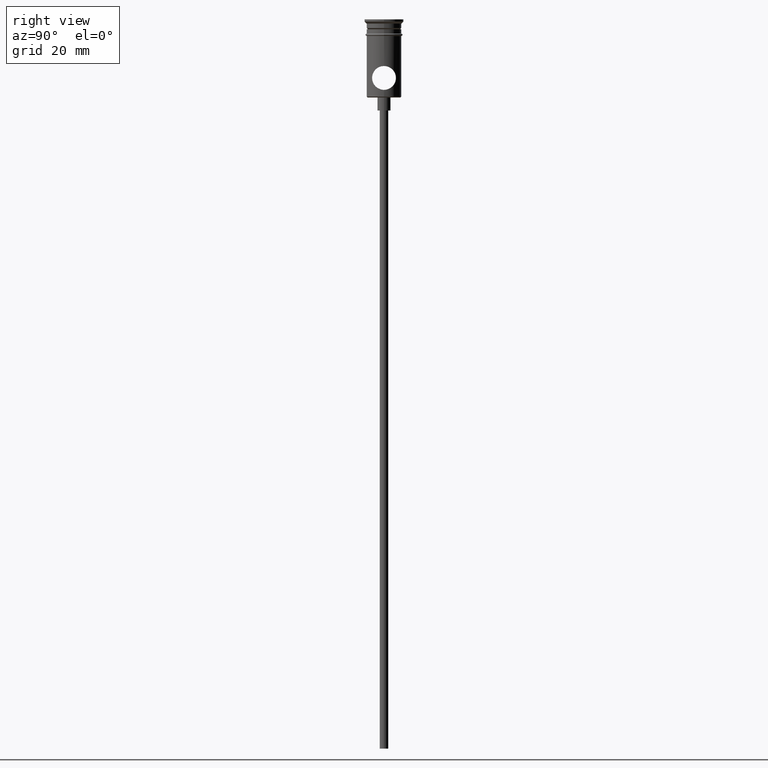
[diagram: clean part render]
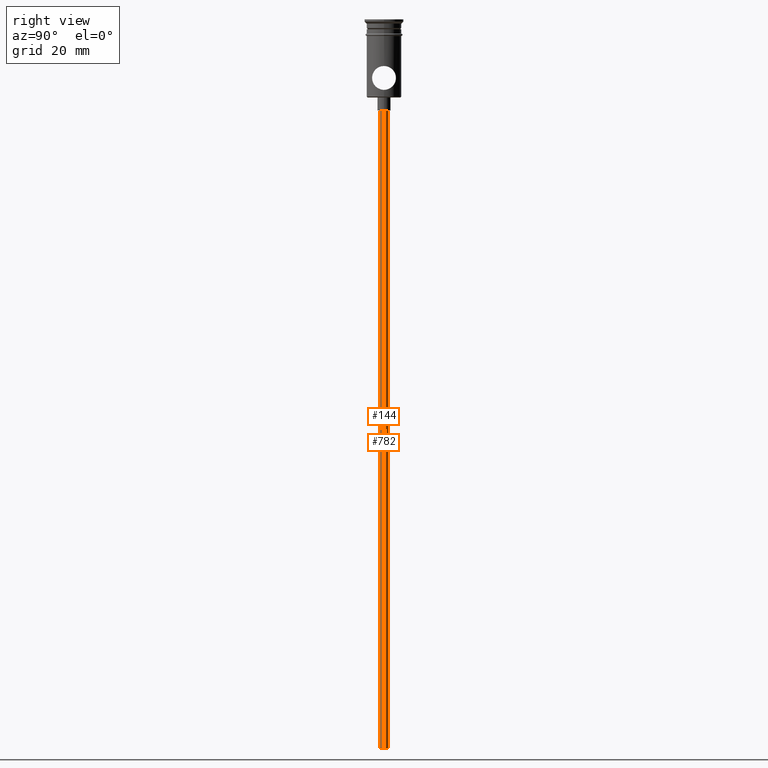
[diagram: same view with one multi-face feature highlighted, each face labeled with its STEP entity id]
A machine part, right view. The highlighted faces form ONE feature: a constant-radius fillet chain: 2 tangent blend faces with common blend radius 1 mm. The faces share edges in the B-rep.
Their STEP definitions:
[1] entity #782 (Cylinder):
#62 = DIRECTION ( 'NONE',  ( -1.000000000000000000, 0.000000000000000000, 0.000000000000000000 ) ) ;
#123 = VECTOR ( 'NONE', #154, 1000.000000000000000 ) ;
#154 = DIRECTION ( 'NONE',  ( -0.000000000000000000, -0.000000000000000000, 1.000000000000000000 ) ) ;
#240 = DIRECTION ( 'NONE',  ( -0.000000000000000000, -0.000000000000000000, 1.000000000000000000 ) ) ;
#251 = EDGE_CURVE ( 'NONE', #1079, #976, #1351, .T. ) ;
#286 = ORIENTED_EDGE ( 'NONE', *, *, #251, .F. ) ;
#291 = AXIS2_PLACEMENT_3D ( 'NONE', #1288, #393, #609 ) ;
#333 = CIRCLE ( 'NONE', #1021, 0.9999999999999997780 ) ;
#392 = CARTESIAN_POINT ( 'NONE',  ( 0.9999999999999997780, 0.000000000000000000, -167.9999999999999716 ) ) ;
#393 = DIRECTION ( 'NONE',  ( -0.000000000000000000, -0.000000000000000000, 1.000000000000000000 ) ) ;
#501 = VERTEX_POINT ( 'NONE', #1142 ) ;
#542 = EDGE_CURVE ( 'NONE', #947, #976, #1191, .T. ) ;
#566 = ORIENTED_EDGE ( 'NONE', *, *, #814, .F. ) ;
#584 = CYLINDRICAL_SURFACE ( 'NONE', #291, 0.9999999999999997780 ) ;
#609 = DIRECTION ( 'NONE',  ( 1.000000000000000000, 0.000000000000000000, 0.000000000000000000 ) ) ;
#610 = DIRECTION ( 'NONE',  ( -1.000000000000000000, 0.000000000000000000, 0.000000000000000000 ) ) ;
#618 = ORIENTED_EDGE ( 'NONE', *, *, #1347, .T. ) ;
#705 = CARTESIAN_POINT ( 'NONE',  ( 0.000000000000000000, 0.000000000000000000, -20.99999999999999645 ) ) ;
#782 = ADVANCED_FACE ( 'NONE', ( #1159 ), #584, .T. ) ;
#814 = EDGE_CURVE ( 'NONE', #501, #1079, #333, .T. ) ;
#868 = ORIENTED_EDGE ( 'NONE', *, *, #542, .T. ) ;
#947 = VERTEX_POINT ( 'NONE', #1128 ) ;
#976 = VERTEX_POINT ( 'NONE', #1355 ) ;
#1021 = AXIS2_PLACEMENT_3D ( 'NONE', #1034, #1279, #62 ) ;
#1034 = CARTESIAN_POINT ( 'NONE',  ( 0.000000000000000000, 0.000000000000000000, -167.9999999999999716 ) ) ;
#1079 = VERTEX_POINT ( 'NONE', #392 ) ;
#1113 = CARTESIAN_POINT ( 'NONE',  ( -0.9999999999999997780, 1.224646799147352961E-16, -167.9999999999999716 ) ) ;
#1128 = CARTESIAN_POINT ( 'NONE',  ( -0.9999999999999997780, 1.224646799147352961E-16, -20.99999999999999645 ) ) ;
#1142 = CARTESIAN_POINT ( 'NONE',  ( -0.9999999999999997780, 1.224646799147352961E-16, -167.9999999999999716 ) ) ;
#1159 = FACE_OUTER_BOUND ( 'NONE', #1306, .T. ) ;
#1165 = DIRECTION ( 'NONE',  ( 0.000000000000000000, 0.000000000000000000, -1.000000000000000000 ) ) ;
#1191 = CIRCLE ( 'NONE', #1383, 0.9999999999999997780 ) ;
#1245 = LINE ( 'NONE', #1113, #123 ) ;
#1279 = DIRECTION ( 'NONE',  ( 0.000000000000000000, 0.000000000000000000, -1.000000000000000000 ) ) ;
#1288 = CARTESIAN_POINT ( 'NONE',  ( 0.000000000000000000, 0.000000000000000000, -167.9999999999999716 ) ) ;
#1292 = VECTOR ( 'NONE', #240, 1000.000000000000000 ) ;
#1306 = EDGE_LOOP ( 'NONE', ( #566, #618, #868, #286 ) ) ;
#1347 = EDGE_CURVE ( 'NONE', #501, #947, #1245, .T. ) ;
#1351 = LINE ( 'NONE', #1366, #1292 ) ;
#1355 = CARTESIAN_POINT ( 'NONE',  ( 0.9999999999999997780, 0.000000000000000000, -20.99999999999999645 ) ) ;
#1366 = CARTESIAN_POINT ( 'NONE',  ( 0.9999999999999997780, 0.000000000000000000, -167.9999999999999716 ) ) ;
#1383 = AXIS2_PLACEMENT_3D ( 'NONE', #705, #1165, #610 ) ;
[2] entity #144 (Cylinder):
#11 = DIRECTION ( 'NONE',  ( 1.000000000000000000, 0.000000000000000000, 0.000000000000000000 ) ) ;
#77 = CARTESIAN_POINT ( 'NONE',  ( 0.000000000000000000, 0.000000000000000000, -20.99999999999999645 ) ) ;
#123 = VECTOR ( 'NONE', #154, 1000.000000000000000 ) ;
#144 = ADVANCED_FACE ( 'NONE', ( #517 ), #983, .T. ) ;
#154 = DIRECTION ( 'NONE',  ( -0.000000000000000000, -0.000000000000000000, 1.000000000000000000 ) ) ;
#156 = DIRECTION ( 'NONE',  ( 0.000000000000000000, 0.000000000000000000, -1.000000000000000000 ) ) ;
#170 = DIRECTION ( 'NONE',  ( 0.000000000000000000, 0.000000000000000000, -1.000000000000000000 ) ) ;
#186 = EDGE_CURVE ( 'NONE', #1079, #501, #556, .T. ) ;
#240 = DIRECTION ( 'NONE',  ( -0.000000000000000000, -0.000000000000000000, 1.000000000000000000 ) ) ;
#249 = ORIENTED_EDGE ( 'NONE', *, *, #186, .F. ) ;
#251 = EDGE_CURVE ( 'NONE', #1079, #976, #1351, .T. ) ;
#329 = CARTESIAN_POINT ( 'NONE',  ( 0.000000000000000000, 0.000000000000000000, -167.9999999999999716 ) ) ;
#348 = DIRECTION ( 'NONE',  ( -1.000000000000000000, 0.000000000000000000, 0.000000000000000000 ) ) ;
#351 = AXIS2_PLACEMENT_3D ( 'NONE', #1247, #156, #348 ) ;
#392 = CARTESIAN_POINT ( 'NONE',  ( 0.9999999999999997780, 0.000000000000000000, -167.9999999999999716 ) ) ;
#426 = DIRECTION ( 'NONE',  ( -0.000000000000000000, -0.000000000000000000, 1.000000000000000000 ) ) ;
#465 = AXIS2_PLACEMENT_3D ( 'NONE', #77, #170, #583 ) ;
#501 = VERTEX_POINT ( 'NONE', #1142 ) ;
#517 = FACE_OUTER_BOUND ( 'NONE', #1109, .T. ) ;
#535 = AXIS2_PLACEMENT_3D ( 'NONE', #329, #426, #11 ) ;
#556 = CIRCLE ( 'NONE', #351, 0.9999999999999997780 ) ;
#569 = ORIENTED_EDGE ( 'NONE', *, *, #1347, .F. ) ;
#583 = DIRECTION ( 'NONE',  ( -1.000000000000000000, 0.000000000000000000, 0.000000000000000000 ) ) ;
#718 = CIRCLE ( 'NONE', #465, 0.9999999999999997780 ) ;
#947 = VERTEX_POINT ( 'NONE', #1128 ) ;
#976 = VERTEX_POINT ( 'NONE', #1355 ) ;
#983 = CYLINDRICAL_SURFACE ( 'NONE', #535, 0.9999999999999997780 ) ;
#1079 = VERTEX_POINT ( 'NONE', #392 ) ;
#1109 = EDGE_LOOP ( 'NONE', ( #569, #249, #1308, #1320 ) ) ;
#1113 = CARTESIAN_POINT ( 'NONE',  ( -0.9999999999999997780, 1.224646799147352961E-16, -167.9999999999999716 ) ) ;
#1128 = CARTESIAN_POINT ( 'NONE',  ( -0.9999999999999997780, 1.224646799147352961E-16, -20.99999999999999645 ) ) ;
#1142 = CARTESIAN_POINT ( 'NONE',  ( -0.9999999999999997780, 1.224646799147352961E-16, -167.9999999999999716 ) ) ;
#1182 = EDGE_CURVE ( 'NONE', #976, #947, #718, .T. ) ;
#1245 = LINE ( 'NONE', #1113, #123 ) ;
#1247 = CARTESIAN_POINT ( 'NONE',  ( 0.000000000000000000, 0.000000000000000000, -167.9999999999999716 ) ) ;
#1292 = VECTOR ( 'NONE', #240, 1000.000000000000000 ) ;
#1308 = ORIENTED_EDGE ( 'NONE', *, *, #251, .T. ) ;
#1320 = ORIENTED_EDGE ( 'NONE', *, *, #1182, .T. ) ;
#1347 = EDGE_CURVE ( 'NONE', #501, #947, #1245, .T. ) ;
#1351 = LINE ( 'NONE', #1366, #1292 ) ;
#1355 = CARTESIAN_POINT ( 'NONE',  ( 0.9999999999999997780, 0.000000000000000000, -20.99999999999999645 ) ) ;
#1366 = CARTESIAN_POINT ( 'NONE',  ( 0.9999999999999997780, 0.000000000000000000, -167.9999999999999716 ) ) ;